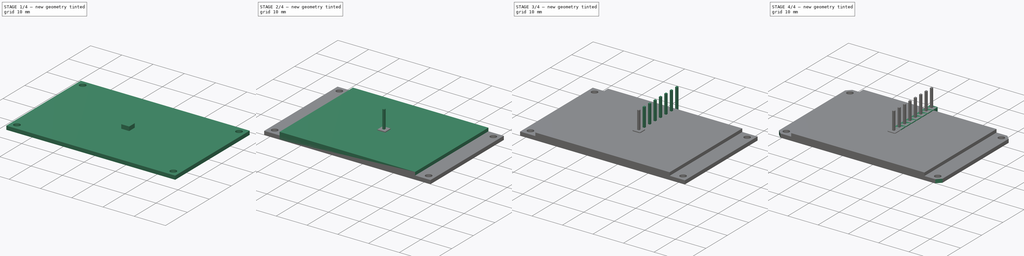
[diagram: build sequence overview — one tinted view per stage of 4, left to right]
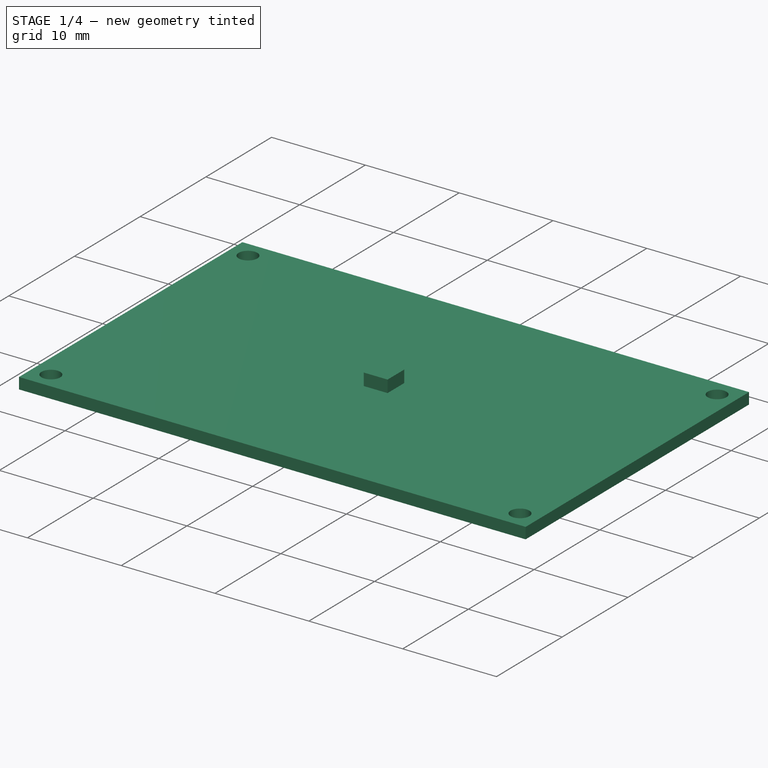
[diagram: stage 1 of 4 — iso view after this stage's code; geometry added in this stage tinted green]
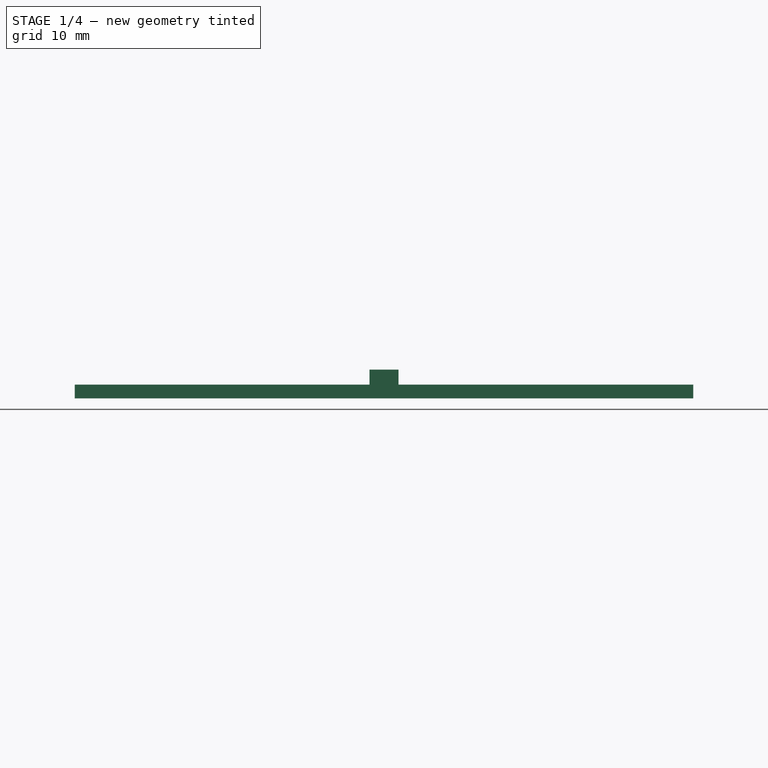
[diagram: stage 1 of 4 — front view after this stage's code; geometry added in this stage tinted green]
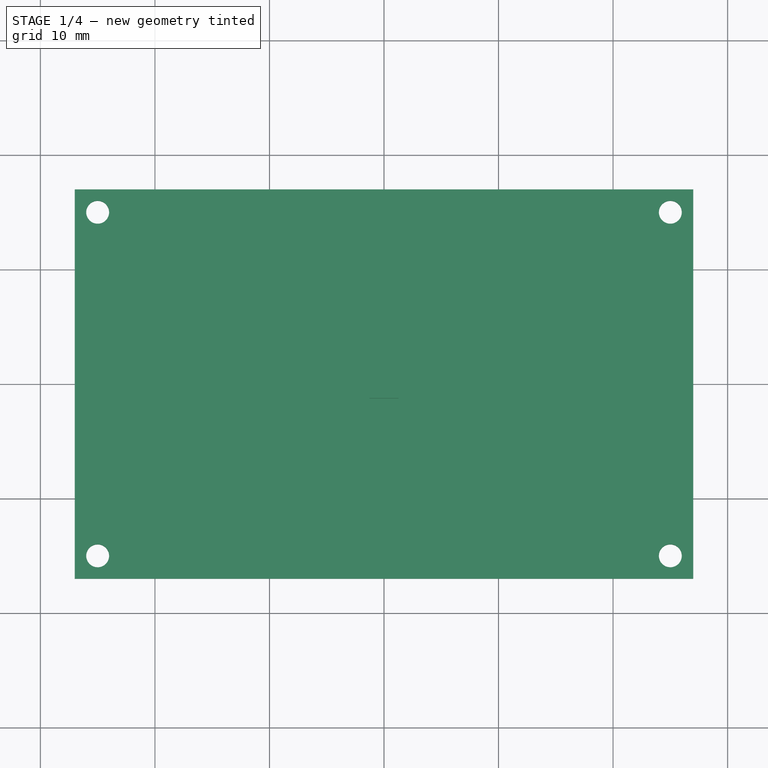
[diagram: stage 1 of 4 — top view after this stage's code; geometry added in this stage tinted green]
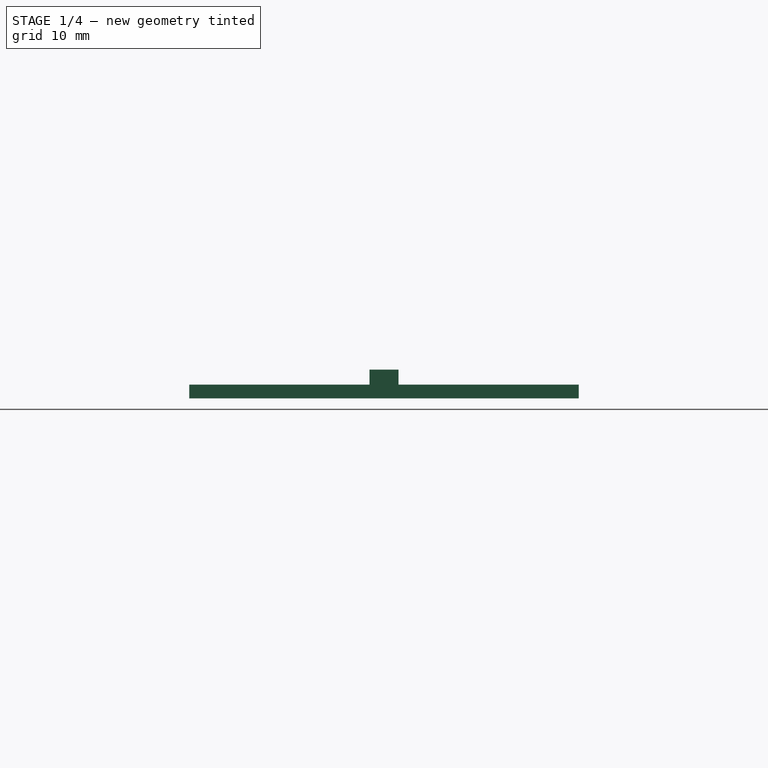
[diagram: stage 1 of 4 — right view after this stage's code; geometry added in this stage tinted green]
FCSTD DOCUMENT  (FreeCAD 0.18R4 (GitTag))
Label: 1_8_inch_tft_screen
License: CreativeCommons Attribution-NonCommercial
LicenseURL: http://creativecommons.org/licenses/by-nc/4.0/
objects: Sketcher::SketchObject×5, PartDesign::Pad×5, PartDesign::Body×5, PartDesign::Chamfer×4, Part::FeaturePython×2, App::Part×2
note: 26 computed .brp shape members not serialized (recipe doc carries the construction recipe); baked Part::Feature solids carry a one-line shape summary decoded from their .brp

FEATURE [Sketcher::SketchObject] Sketch208
  MapMode = 5
  Support = -> [XY_Plane052]
  sketch-geometry (4):
    g0: LineSegment StartX=-1.27 StartY=-1.27 StartZ=0 EndX=1.27 EndY=-1.27 EndZ=0
    g1: LineSegment StartX=1.27 StartY=-1.27 StartZ=0 EndX=1.27 EndY=1.27 EndZ=0
    g2: LineSegment StartX=1.27 StartY=1.27 StartZ=0 EndX=-1.27 EndY=1.27 EndZ=0
    g3: LineSegment StartX=-1.27 StartY=1.27 StartZ=0 EndX=-1.27 EndY=-1.27 EndZ=0
  constraints (10):
    c: Coincident(g0,g1)
    c: Coincident(g1,g2)
    c: Coincident(g2,g3)
    c: Coincident(g3,g0)
    c: Horizontal(g0)
    c: Vertical(g3)
    c: Symmetric(g1,g2,g-2)
    c: Symmetric(g0,g1,g-1)
    c: Equal(g3,g2)
    c: DistanceX(g2,g2) = 2.54
FEATURE [PartDesign::Pad] Pad063
  Length = 2.5
  Length2 = 100
  Profile = -> Sketch208
  Type = 0
FEATURE [PartDesign::Body] Body002  label="1,8" TFT Screen Frame"
  Group = -> [Sketch016,Pad008]
  Origin = -> Origin053
  Placement = pos=(0,0,1.2) rot=(0,0,1;0rad)
  Tip = -> Pad008
FEATURE [Sketcher::SketchObject] Sketch017
  MapMode = 5
  Support = -> [XY_Plane003]
  sketch-geometry (4):
    g0: LineSegment StartX=-16 StartY=-14.5 StartZ=0 EndX=20 EndY=-14.5 EndZ=0
    g1: LineSegment StartX=20 StartY=-14.5 StartZ=0 EndX=20 EndY=14.5 EndZ=0
    g2: LineSegment StartX=20 StartY=14.5 StartZ=0 EndX=-16 EndY=14.5 EndZ=0
    g3: LineSegment StartX=-16 StartY=14.5 StartZ=0 EndX=-16 EndY=-14.5 EndZ=0
  constraints (11):
    c: Coincident(g0,g1)
    c: Coincident(g1,g2)
    c: Coincident(g2,g3)
    c: Coincident(g3,g0)
    c: Horizontal(g0)
    c: Horizontal(g2)
    c: Vertical(g3)
    c: DistanceX(g2,g2) = 36
    c: DistanceY(g1,g1) = 29
    c: Symmetric(g1,g0,g-1)
    c: DistanceX(g-1,g0) = 20
FEATURE [PartDesign::Pad] Pad002
  Length = 0.1
  Length2 = 100
  Profile = -> Sketch017
  Type = 0
FEATURE [PartDesign::Body] Body003  label="1,8" TFT Screen"
  Group = -> [Sketch017,Pad002]
  Origin = -> Origin003
  Placement = pos=(0,0,3.45) rot=(0,0,1;0rad)
  Tip = -> Pad002
FEATURE [Sketcher::SketchObject] Sketch209
  MapMode = 5
  Support = -> [XY_Plane001]
  sketch-geometry (8):
    g0: LineSegment StartX=-27 StartY=17 StartZ=0 EndX=27 EndY=17 EndZ=0
    g1: LineSegment StartX=27 StartY=17 StartZ=0 EndX=27 EndY=-17 EndZ=0
    g2: LineSegment StartX=27 StartY=-17 StartZ=0 EndX=-27 EndY=-17 EndZ=0
    g3: LineSegment StartX=-27 StartY=-17 StartZ=0 EndX=-27 EndY=17 EndZ=0
    g4: Circle CenterX=-25 CenterY=15 CenterZ=0 NormalX=0 NormalY=0 NormalZ=1 AngleXU=0 Radius=1
    g5: Circle CenterX=25 CenterY=15 CenterZ=0 NormalX=0 NormalY=0 NormalZ=1 AngleXU=0 Radius=1
    g6: Circle CenterX=-25 CenterY=-15 CenterZ=0 NormalX=0 NormalY=0 NormalZ=1 AngleXU=0 Radius=1
    g7: Circle CenterX=25 CenterY=-15 CenterZ=0 NormalX=0 NormalY=0 NormalZ=1 AngleXU=0 Radius=1
  constraints (19):
    c: Coincident(g0,g1)
    c: Coincident(g1,g2)
    c: Coincident(g2,g3)
    c: Coincident(g3,g0)
    c: Horizontal(g2)
    c: Vertical(g3)
    c: Symmetric(g0,g0,g-2)
    c: Symmetric(g0,g1,g-1)
    c: DistanceX(g0,g0) = 54
    c: DistanceY(g1,g1) = 34
    c: Symmetric(g4,g5,g-2)
    c: Symmetric(g7,g6,g-2)
    c: Symmetric(g7,g5,g-1)
    c: Equal(g7,g5)
    c: Equal(g5,g4)
    c: Equal(g4,g6)
    c: Radius(g4) = 1
    c: DistanceY(g7,g5) = 30
    c: DistanceX(g6,g7) = 50
FEATURE [PartDesign::Pad] Pad007
  Length = 1.2
  Length2 = 100
  Profile = -> Sketch209
  Type = 0
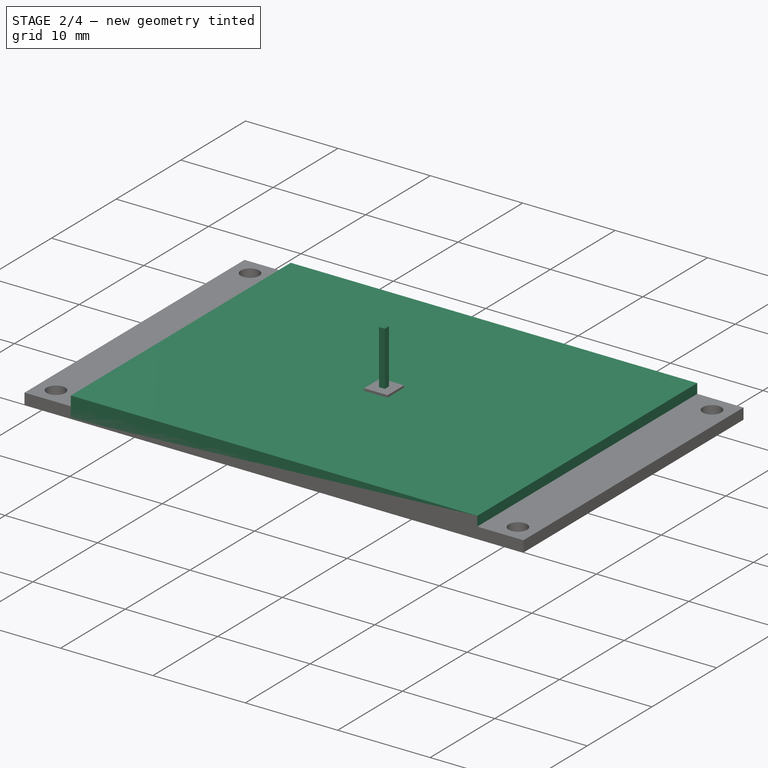
[diagram: stage 2 of 4 — iso view after this stage's code; geometry added in this stage tinted green]
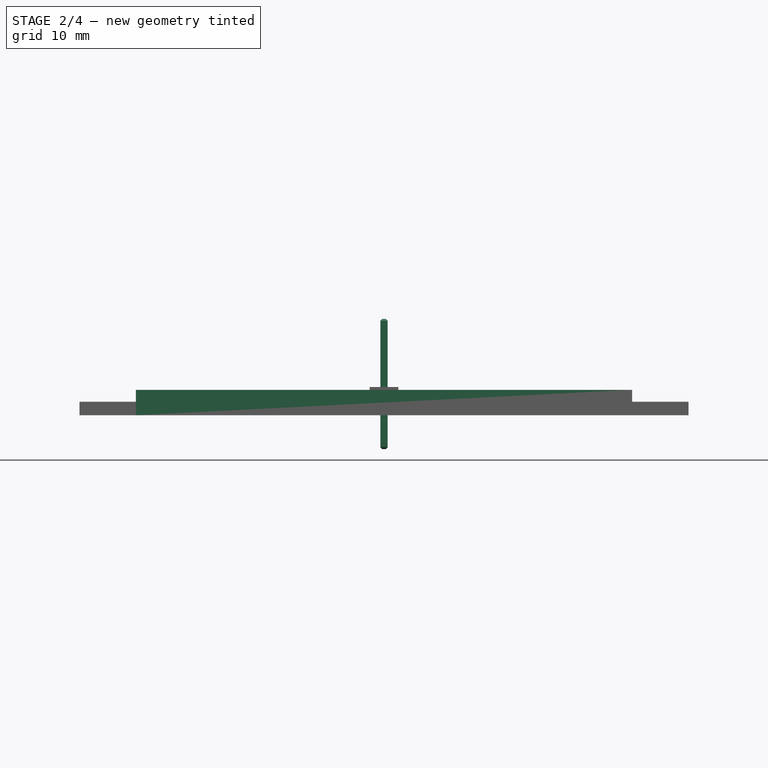
[diagram: stage 2 of 4 — front view after this stage's code; geometry added in this stage tinted green]
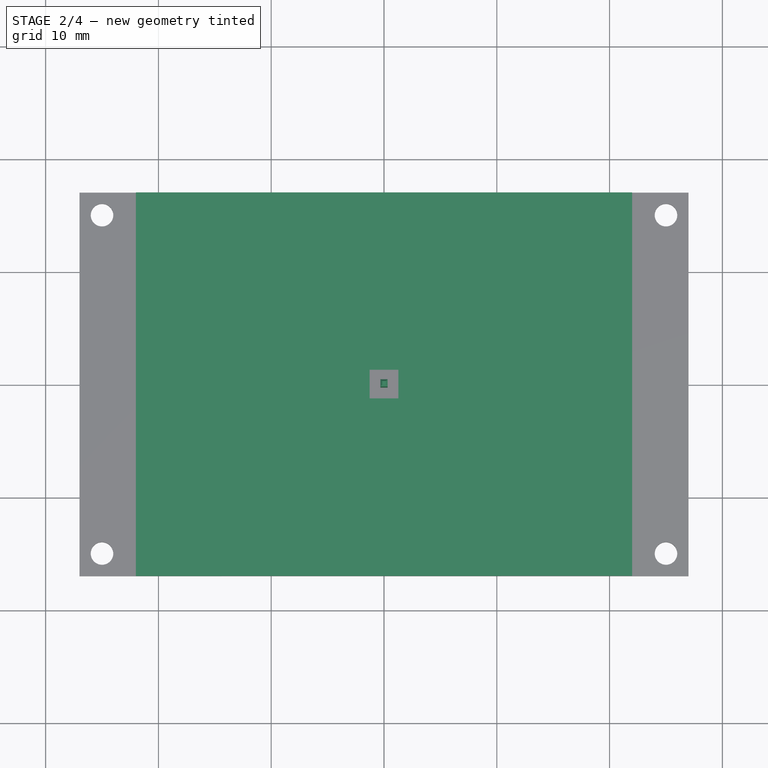
[diagram: stage 2 of 4 — top view after this stage's code; geometry added in this stage tinted green]
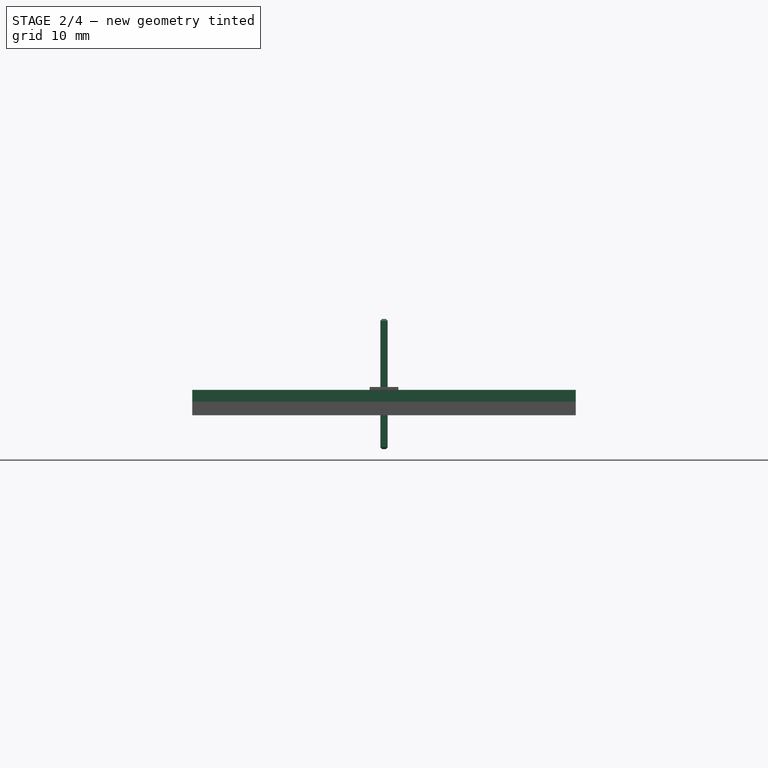
[diagram: stage 2 of 4 — right view after this stage's code; geometry added in this stage tinted green]
FEATURE [Sketcher::SketchObject] Sketch207
  MapMode = 5
  Placement = pos=(0,0,0) rot=(1,0,0;1.5708rad)
  Support = -> [XZ_Plane050]
  sketch-geometry (4):
    g0: LineSegment StartX=-0.32 StartY=-3 StartZ=0 EndX=0.32 EndY=-3 EndZ=0
    g1: LineSegment StartX=0.32 StartY=-3 StartZ=0 EndX=0.32 EndY=8.54 EndZ=0
    g2: LineSegment StartX=0.32 StartY=8.54 StartZ=0 EndX=-0.32 EndY=8.54 EndZ=0
    g3: LineSegment StartX=-0.32 StartY=8.54 StartZ=0 EndX=-0.32 EndY=-3 EndZ=0
  constraints (11):
    c: Coincident(g0,g1)
    c: Coincident(g1,g2)
    c: Coincident(g2,g3)
    c: Coincident(g3,g0)
    c: Horizontal(g0)
    c: Vertical(g1)
    c: Vertical(g3)
    c: DistanceY(g-1,g1) = 8.54
    c: DistanceY(g0,g-1) = 3
    c: Symmetric(g2,g1,g-2)
    c: DistanceX(g2,g2) = 0.64
FEATURE [PartDesign::Pad] Pad062
  Length = 0.32
  Length2 = 0.32
  Placement = pos=(0,0,0) rot=(1,0,0;1.5708rad)
  Profile = -> Sketch207
  Type = 4
FEATURE [PartDesign::Chamfer] Chamfer012
  Base = -> Pad062 [Face3,Face1]
  BaseFeature = -> Pad062
  Placement = pos=(0,0,0) rot=(1,0,0;1.5708rad)
  Size = 0.16
FEATURE [App::Part] Part010  label="Pin Header"
  Group = -> [Body035,Body034,Array,Array001]
  Origin = -> Origin051
  Placement = pos=(25,8.9,-1.1e-15) rot=(1,0,0;3.14159rad)
FEATURE [Sketcher::SketchObject] Sketch016
  MapMode = 5
  Support = -> [XY_Plane002]
  sketch-geometry (4):
    g0: LineSegment StartX=-22 StartY=17 StartZ=0 EndX=22 EndY=17 EndZ=0
    g1: LineSegment StartX=22 StartY=17 StartZ=0 EndX=22 EndY=-17 EndZ=0
    g2: LineSegment StartX=22 StartY=-17 StartZ=0 EndX=-22 EndY=-17 EndZ=0
    g3: LineSegment StartX=-22 StartY=-17 StartZ=0 EndX=-22 EndY=17 EndZ=0
  constraints (10):
    c: Coincident(g0,g1)
    c: Coincident(g1,g2)
    c: Coincident(g2,g3)
    c: Coincident(g3,g0)
    c: Horizontal(g2)
    c: Vertical(g1)
    c: Symmetric(g0,g2,g-1)
    c: DistanceX(g0,g0) = 44
    c: DistanceY(g3,g3) = 34
    c: Symmetric(g0,g0,g-2)
FEATURE [PartDesign::Pad] Pad008
  Length = 2.25
  Length2 = 100
  Profile = -> Sketch016
  Type = 0
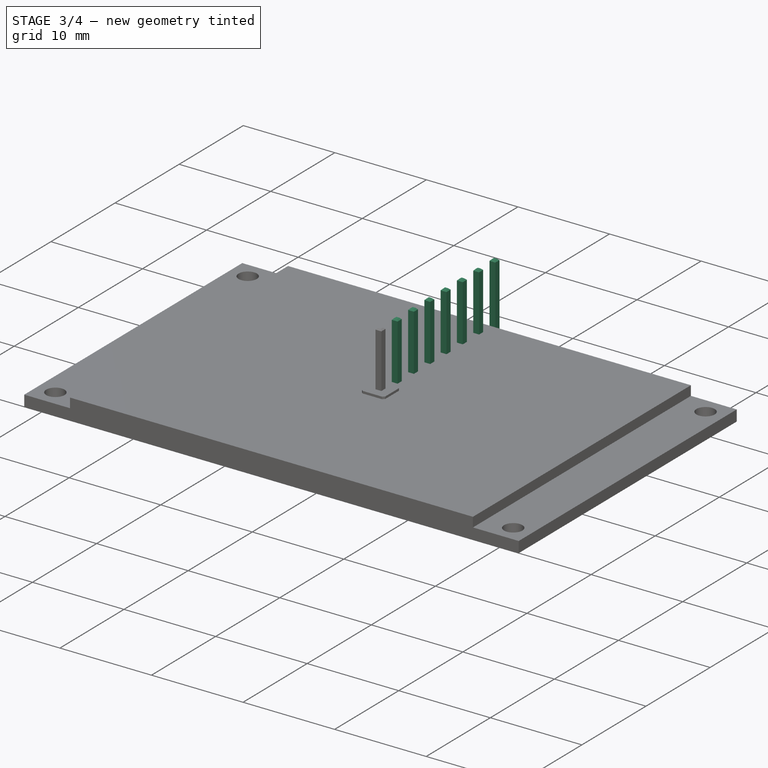
[diagram: stage 3 of 4 — iso view after this stage's code; geometry added in this stage tinted green]
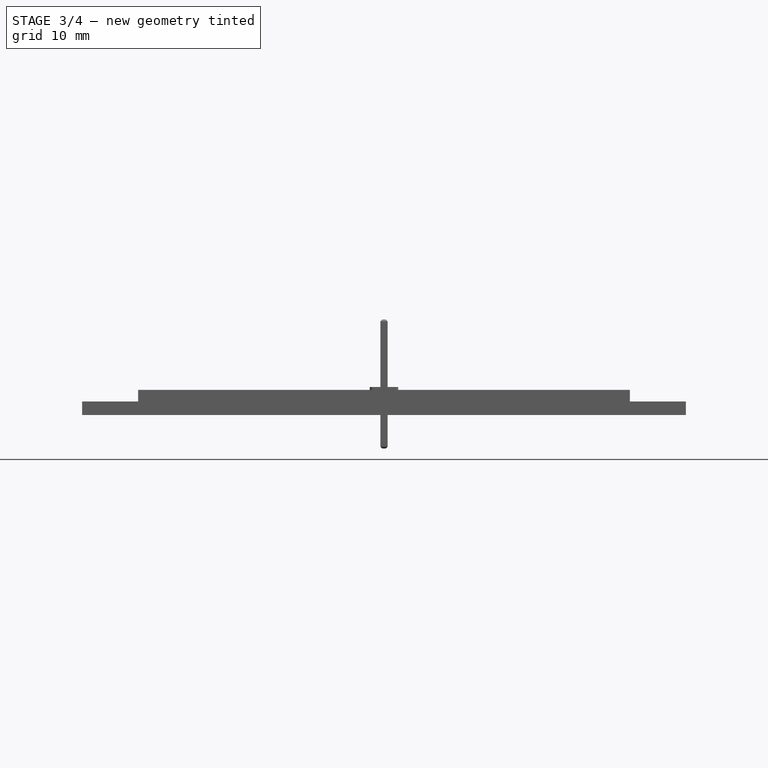
[diagram: stage 3 of 4 — front view after this stage's code; geometry added in this stage tinted green]
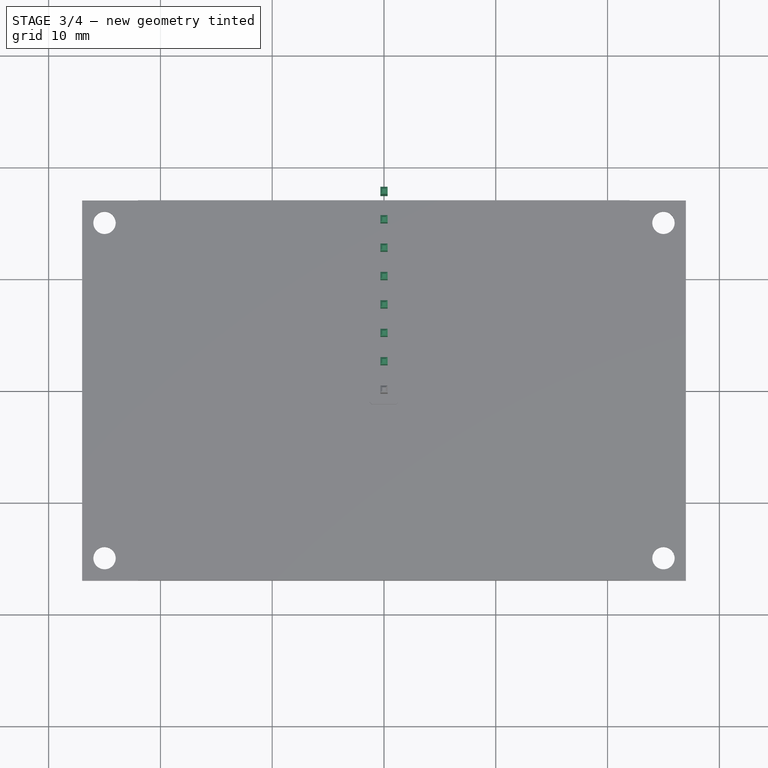
[diagram: stage 3 of 4 — top view after this stage's code; geometry added in this stage tinted green]
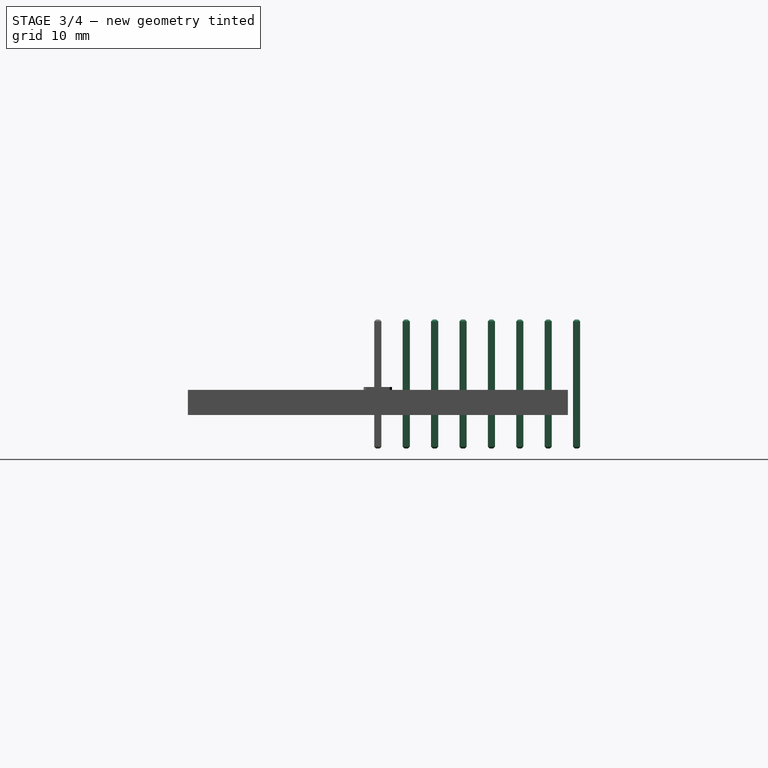
[diagram: stage 3 of 4 — right view after this stage's code; geometry added in this stage tinted green]
FEATURE [PartDesign::Body] Body034  label="Pin Header Pin"
  Group = -> [Sketch207,Pad062,Chamfer012]
  Origin = -> Origin050
  Tip = -> Chamfer012
FEATURE [Part::FeaturePython] Array001  # Draft array (typed FeaturePython)
  Angle = 360
  ArrayType = 0
  Axis = (0,0,1)
  Base = -> Body034
  Center = (0,0,0)
  Fuse = false
  IntervalAxis = (0,0,0)
  IntervalX = (1,0,0)
  IntervalY = (0,2.54,0)
  IntervalZ = (0,0,1)
  NumberPolar = 1
  NumberX = 1
  NumberY = 8
  NumberZ = 1
FEATURE [PartDesign::Chamfer] Chamfer014
  Base = -> Pad063 [Edge2,Edge1,Edge5,Edge8]
  BaseFeature = -> Pad063
  Size = 0.2
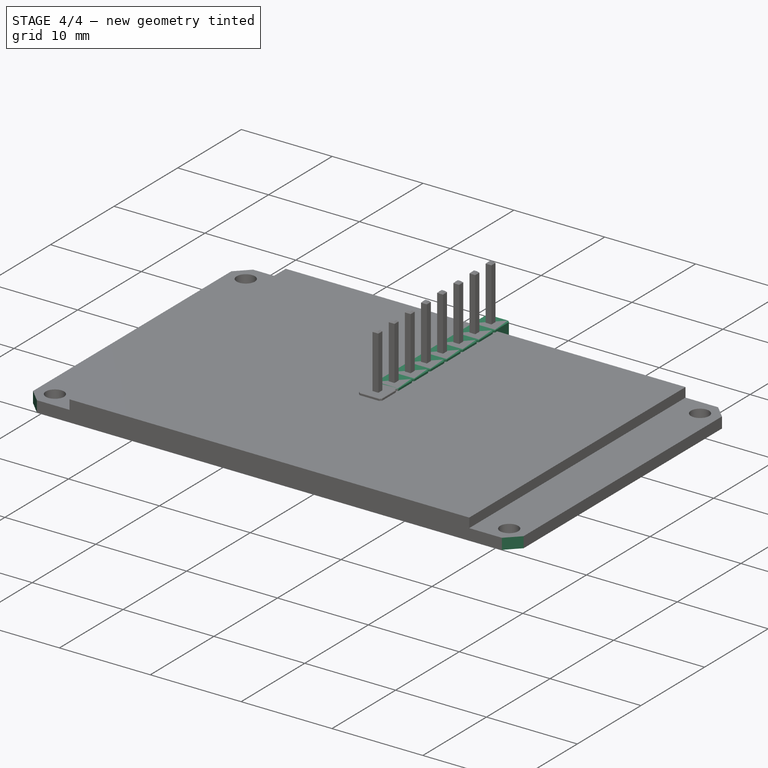
[diagram: stage 4 of 4 — iso view after this stage's code; geometry added in this stage tinted green]
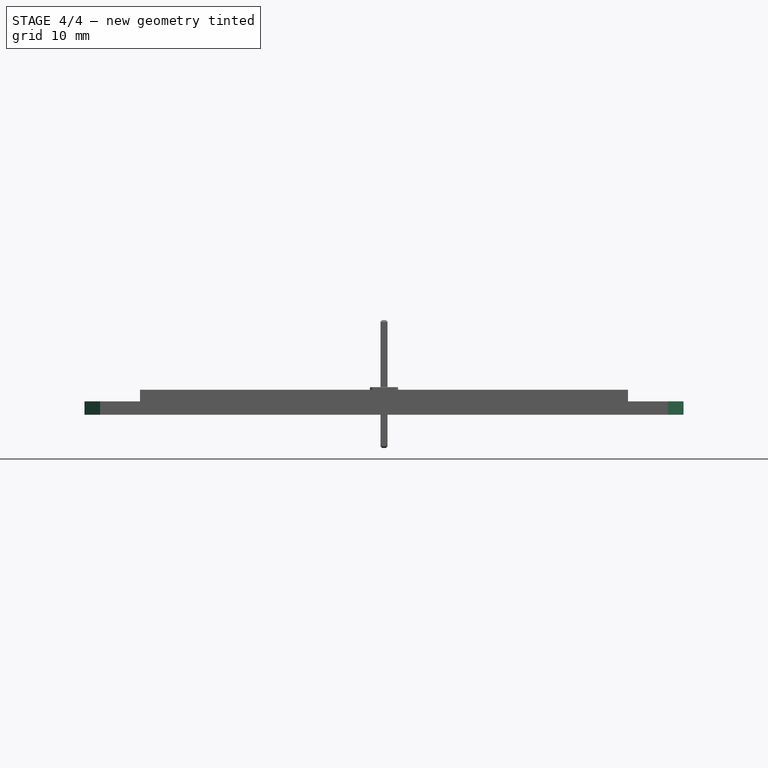
[diagram: stage 4 of 4 — front view after this stage's code; geometry added in this stage tinted green]
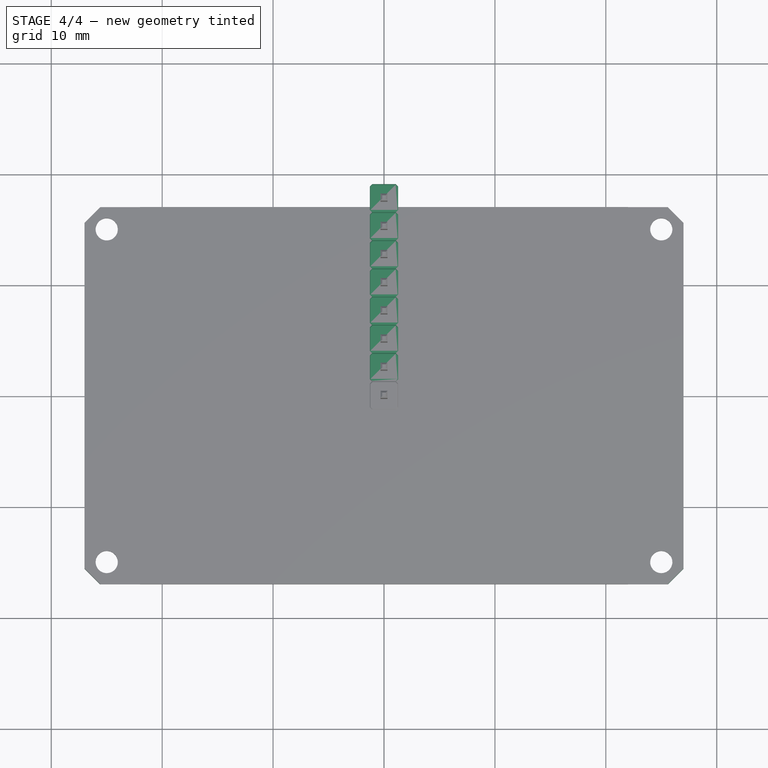
[diagram: stage 4 of 4 — top view after this stage's code; geometry added in this stage tinted green]
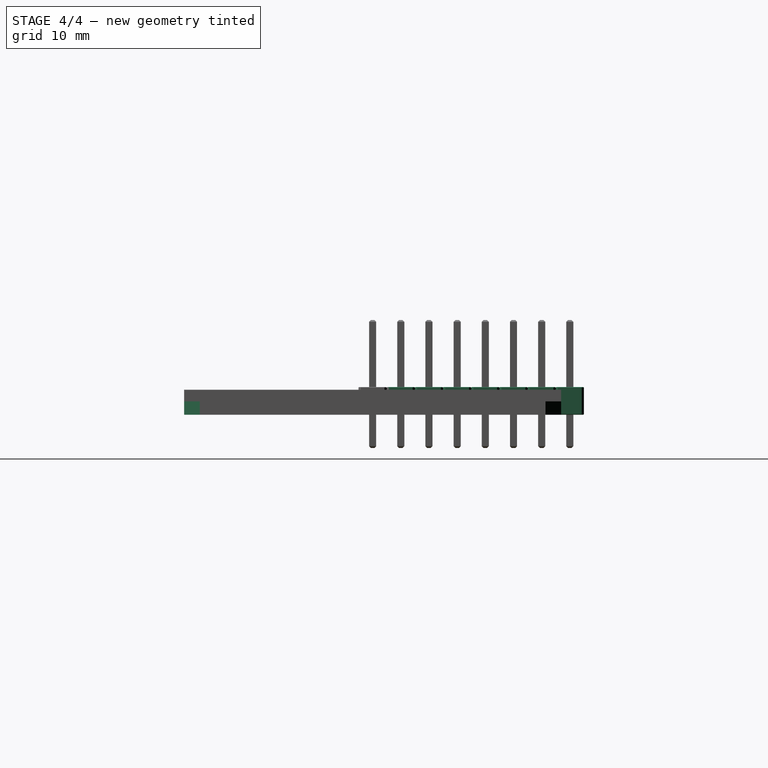
[diagram: stage 4 of 4 — right view after this stage's code; geometry added in this stage tinted green]
FEATURE [PartDesign::Chamfer] Chamfer013
  Base = -> Chamfer014 [Face5,Face2]
  BaseFeature = -> Chamfer014
  Size = 0.05
FEATURE [PartDesign::Body] Body035  label="Pin Header Block"
  Group = -> [Sketch208,Pad063,Chamfer014,Chamfer013]
  Origin = -> Origin052
  Tip = -> Chamfer013
FEATURE [Part::FeaturePython] Array  # Draft array (typed FeaturePython)
  Angle = 360
  ArrayType = 0
  Axis = (0,0,1)
  Base = -> Body035
  Center = (0,0,0)
  Fuse = false
  IntervalAxis = (0,0,0)
  IntervalX = (1,0,0)
  IntervalY = (0,2.54,0)
  IntervalZ = (0,0,1)
  NumberPolar = 1
  NumberX = 1
  NumberY = 8
  NumberZ = 1
FEATURE [PartDesign::Chamfer] Chamfer
  Base = -> Pad007 [Edge8,Edge5,Edge2,Edge1]
  BaseFeature = -> Pad007
  Size = 1.41
FEATURE [PartDesign::Body] Body001  label="1,8" TFT PCB"
  Group = -> [Sketch209,Pad007,Chamfer]
  Origin = -> Origin002
  Tip = -> Chamfer
FEATURE [App::Part] Part  label="1,8" TFT"
  Group = -> [Body001,Body002,Body003,Part010]
  Origin = -> Origin001
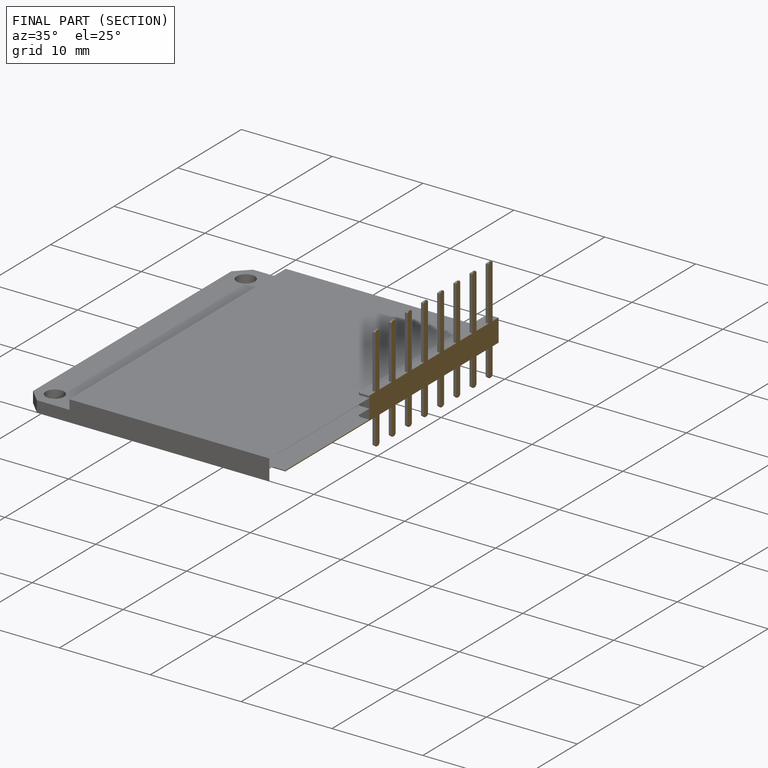
[diagram: finished part — half-section view (interior)]
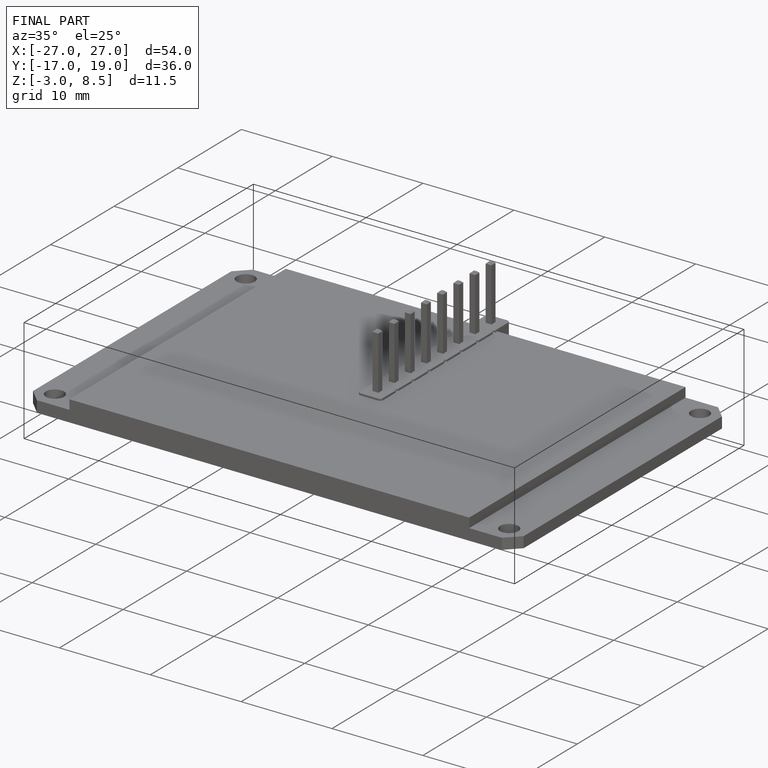
[diagram: finished part — iso view with bounding-box wireframe]
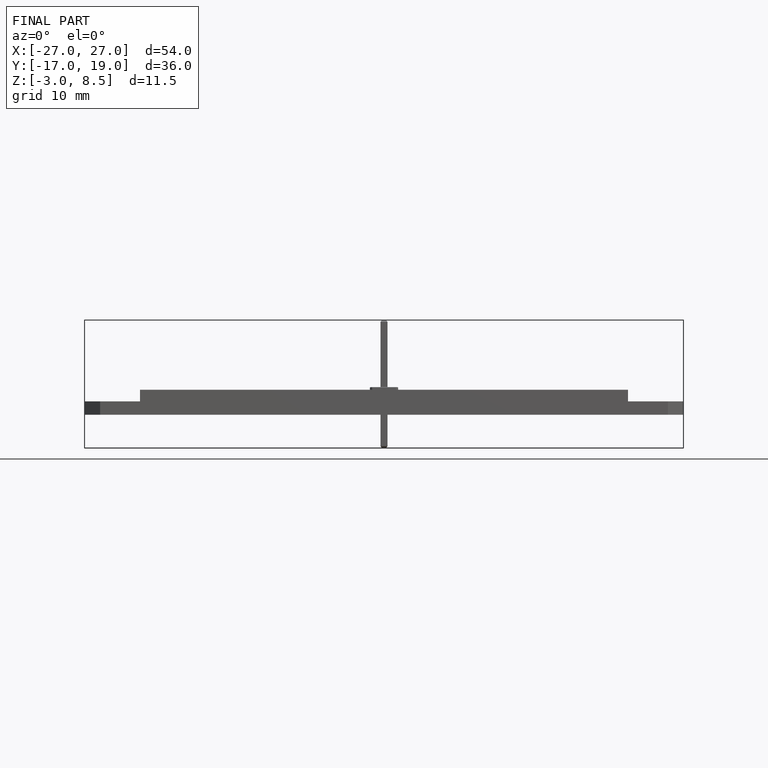
[diagram: finished part — front view with bounding-box wireframe]
